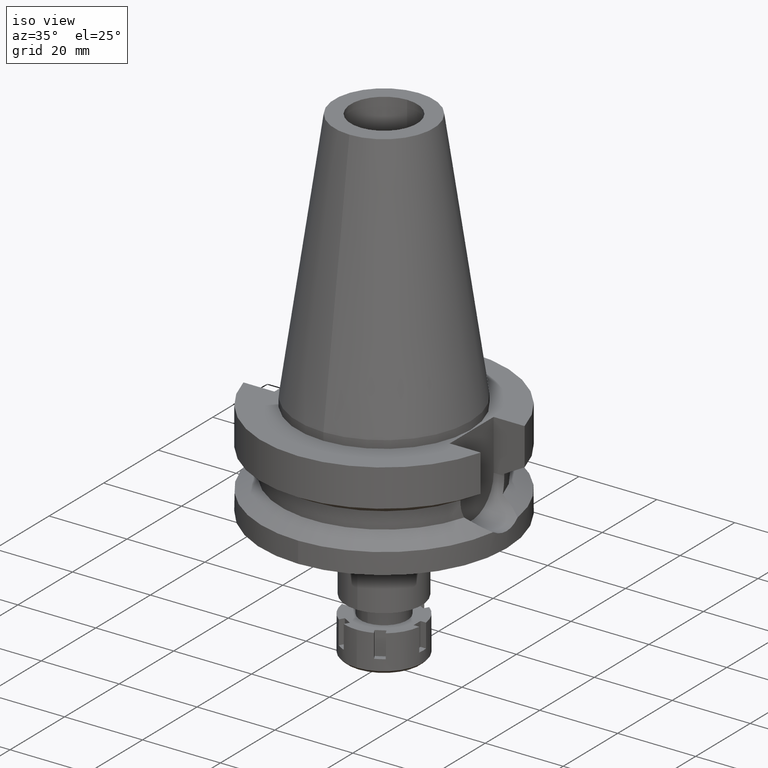
[diagram: clean part render]
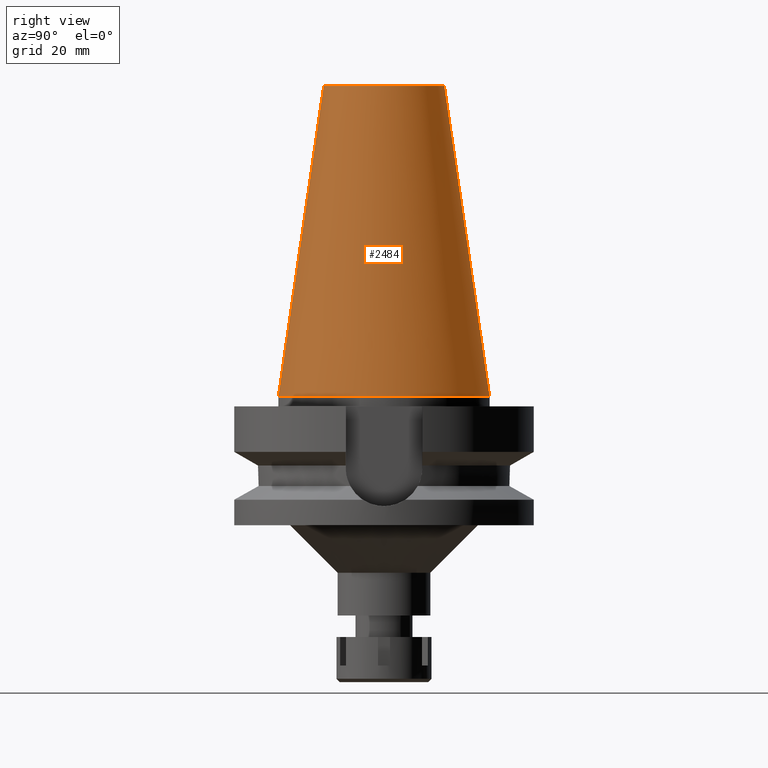
[diagram: tour spotlight — one face highlighted and labeled with its STEP entity id]
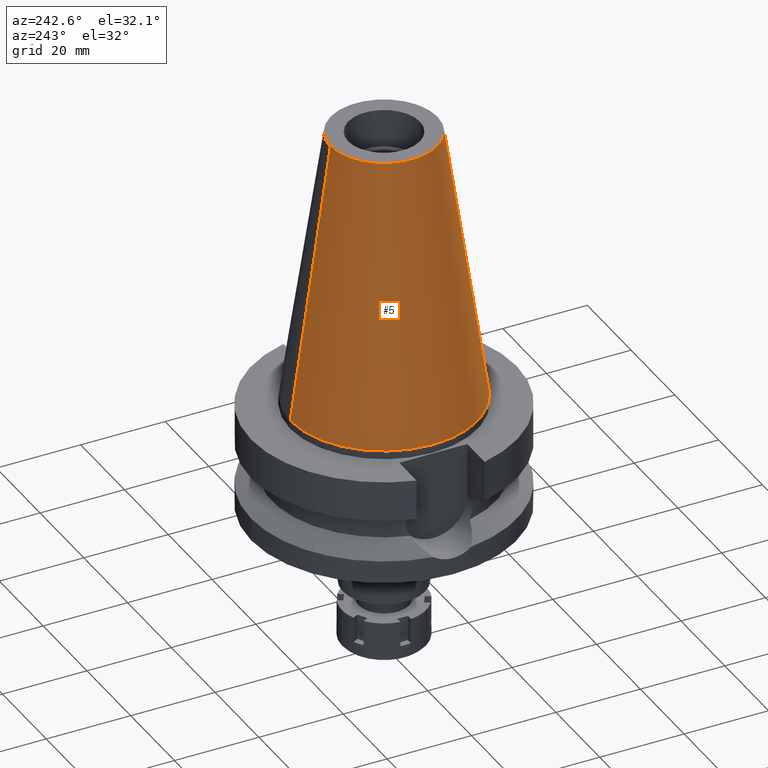
[diagram: tour spotlight — one face highlighted and labeled with its STEP entity id]
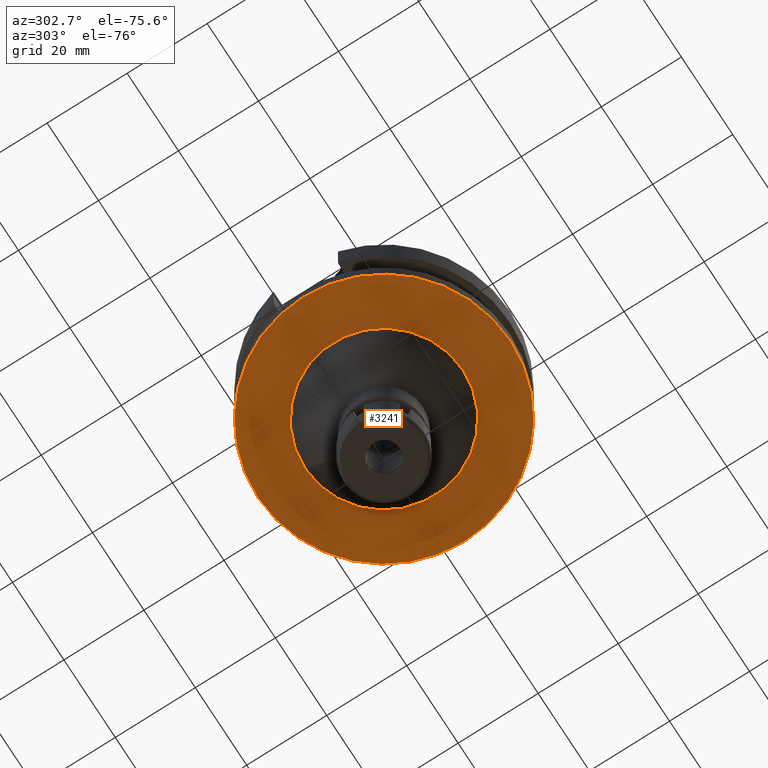
[diagram: tour spotlight — one face highlighted and labeled with its STEP entity id]
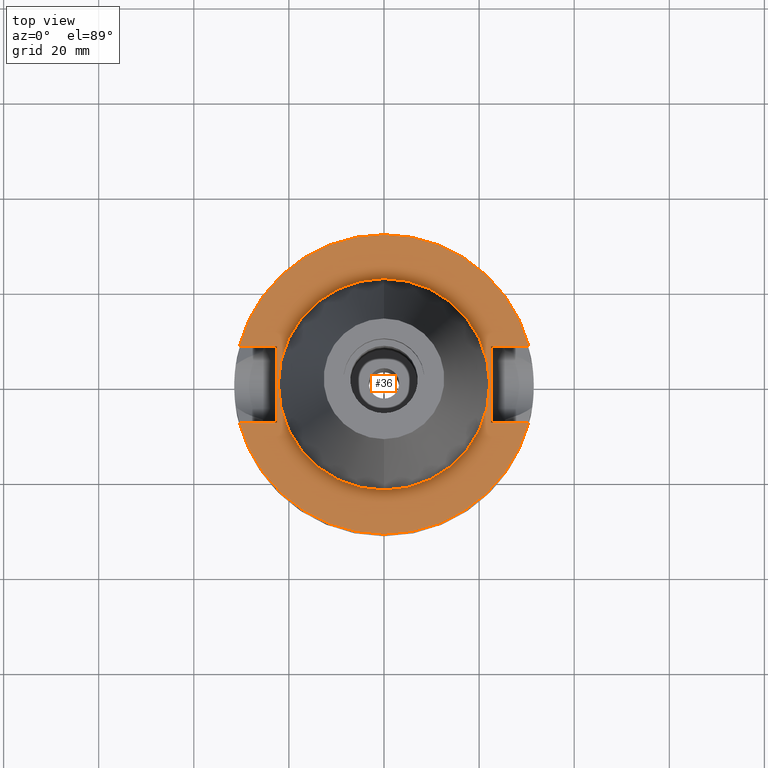
[diagram: tour spotlight — one face highlighted and labeled with its STEP entity id]
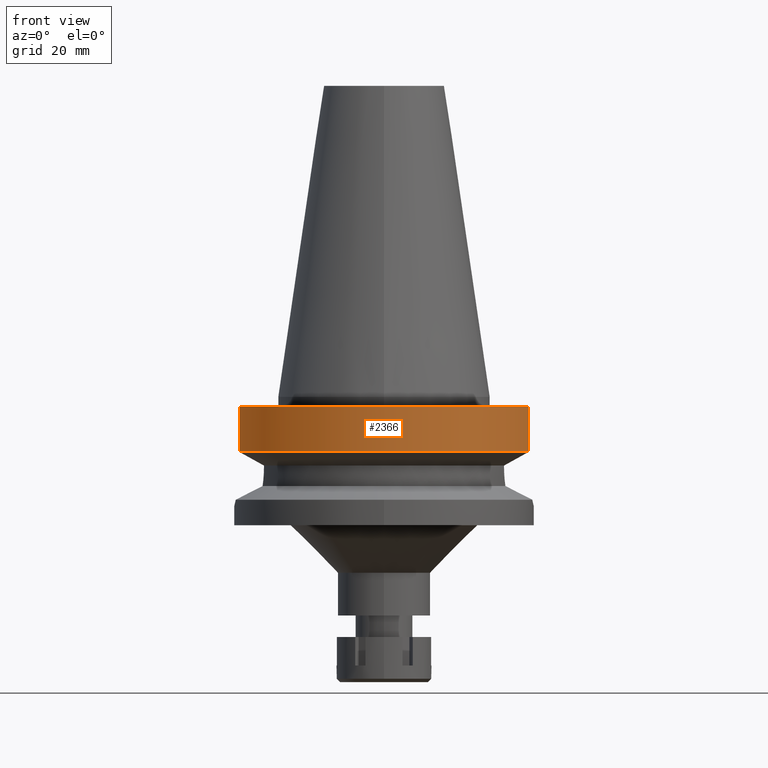
[diagram: tour spotlight — one face highlighted and labeled with its STEP entity id]
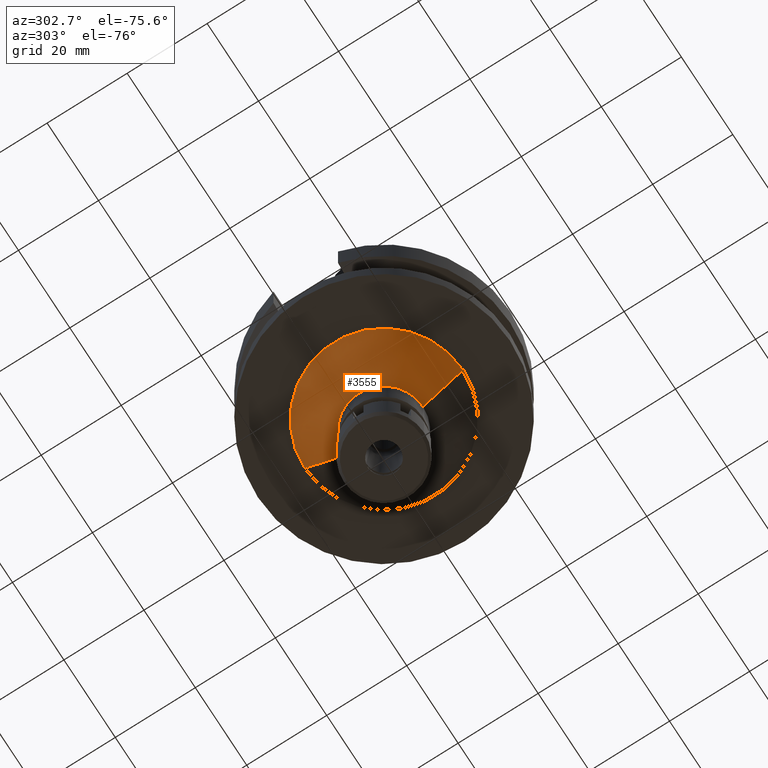
[diagram: tour spotlight — one face highlighted and labeled with its STEP entity id]
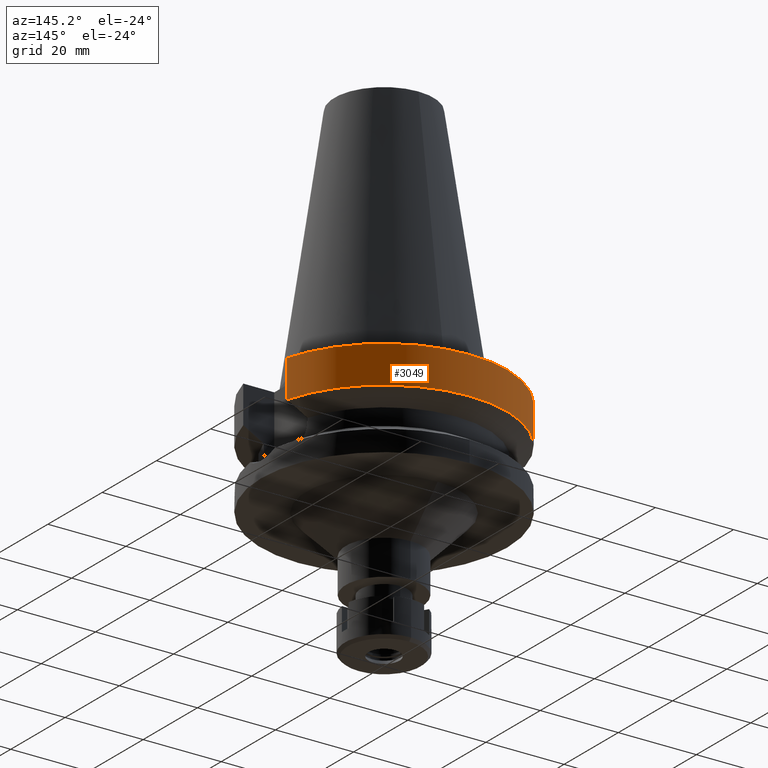
[diagram: tour spotlight — one face highlighted and labeled with its STEP entity id]
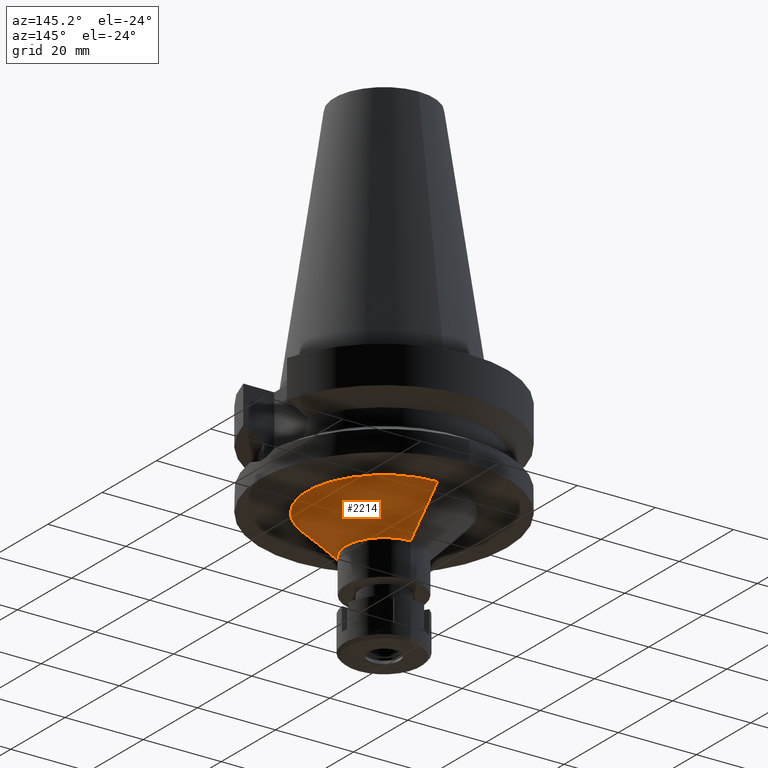
[diagram: tour spotlight — one face highlighted and labeled with its STEP entity id]
A machine part: a face-by-face anatomy tour. The part has 90 B-rep faces; the first image is the clean iso view, then the 8 largest visible faces are spotlighted one at a time (largest first), each with its STEP entity span.

Face 1 — right view, entity #2484. In plain terms, the highlighted conical surface has half-angle 8.297 deg.
Definition (entity closure, byte-faithful):
#177 = CARTESIAN_POINT ( 'NONE',  ( 0.0000000000000000000, 1.625106302469000024E-14, 2.842170943039999687E-14 ) ) ;
#335 = LINE ( 'NONE', #1446, #3339 ) ;
#461 = VERTEX_POINT ( 'NONE', #3129 ) ;
#536 = DIRECTION ( 'NONE',  ( 0.0000000000000000000, 0.0000000000000000000, -1.000000000000000000 ) ) ;
#649 = CARTESIAN_POINT ( 'NONE',  ( 0.0000000000000000000, 12.68766899429999917, 65.40000000000000568 ) ) ;
#653 = DIRECTION ( 'NONE',  ( 0.0000000000000000000, 0.0000000000000000000, -1.000000000000000000 ) ) ;
#698 = CIRCLE ( 'NONE', #2717, 22.22500000000000142 ) ;
#705 = EDGE_LOOP ( 'NONE', ( #3451, #1070, #3132, #872 ) ) ;
#872 = ORIENTED_EDGE ( 'NONE', *, *, #3121, .F. ) ;
#941 = AXIS2_PLACEMENT_3D ( 'NONE', #2431, #1617, #1341 ) ;
#1070 = ORIENTED_EDGE ( 'NONE', *, *, #1762, .T. ) ;
#1124 = VERTEX_POINT ( 'NONE', #1647 ) ;
#1208 = EDGE_CURVE ( 'NONE', #461, #3434, #698, .T. ) ;
#1289 = VERTEX_POINT ( 'NONE', #3405 ) ;
#1341 = DIRECTION ( 'NONE',  ( 0.0000000000000000000, -1.000000000000000000, 0.0000000000000000000 ) ) ;
#1446 = CARTESIAN_POINT ( 'NONE',  ( 0.0000000000000000000, -12.68766899429999917, 65.40000000000000568 ) ) ;
#1499 = VECTOR ( 'NONE', #1817, 1000.000000000000114 ) ;
#1595 = FACE_OUTER_BOUND ( 'NONE', #705, .T. ) ;
#1617 = DIRECTION ( 'NONE',  ( 0.0000000000000000000, 0.0000000000000000000, -1.000000000000000000 ) ) ;
#1647 = CARTESIAN_POINT ( 'NONE',  ( 0.0000000000000000000, 12.68766899429999917, 65.40000000000000568 ) ) ;
#1762 = EDGE_CURVE ( 'NONE', #1289, #3434, #335, .T. ) ;
#1817 = DIRECTION ( 'NONE',  ( 0.0000000000000000000, 0.1443043893539925626, -0.9895333461855498891 ) ) ;
#2207 = CARTESIAN_POINT ( 'NONE',  ( 0.0000000000000000000, -22.22500000000000142, 2.842170943039999687E-14 ) ) ;
#2376 = DIRECTION ( 'NONE',  ( 0.0000000000000000000, 1.000000000000000000, 0.0000000000000000000 ) ) ;
#2387 = EDGE_CURVE ( 'NONE', #1124, #1289, #3355, .T. ) ;
#2431 = CARTESIAN_POINT ( 'NONE',  ( 0.0000000000000000000, 1.625106302469000024E-14, 32.70000000000000284 ) ) ;
#2484 = ADVANCED_FACE ( 'NONE', ( #1595 ), #2505, .T. ) ;
#2505 = CONICAL_SURFACE ( 'NONE', #941, 17.45633449714999941, 0.1448099680379422438 ) ;
#2554 = AXIS2_PLACEMENT_3D ( 'NONE', #2722, #536, #2376 ) ;
#2567 = DIRECTION ( 'NONE',  ( 0.0000000000000000000, 1.000000000000000000, 0.0000000000000000000 ) ) ;
#2717 = AXIS2_PLACEMENT_3D ( 'NONE', #177, #653, #2567 ) ;
#2722 = CARTESIAN_POINT ( 'NONE',  ( 0.0000000000000000000, 1.625106302469000024E-14, 65.40000000000000568 ) ) ;
#3107 = DIRECTION ( 'NONE',  ( 0.0000000000000000000, -0.1443043893539925626, -0.9895333461855498891 ) ) ;
#3111 = LINE ( 'NONE', #649, #1499 ) ;
#3121 = EDGE_CURVE ( 'NONE', #1124, #461, #3111, .T. ) ;
#3129 = CARTESIAN_POINT ( 'NONE',  ( 0.0000000000000000000, 22.22500000000000142, 2.842170943039999687E-14 ) ) ;
#3132 = ORIENTED_EDGE ( 'NONE', *, *, #1208, .F. ) ;
#3339 = VECTOR ( 'NONE', #3107, 1000.000000000000114 ) ;
#3355 = CIRCLE ( 'NONE', #2554, 12.68766899429999917 ) ;
#3405 = CARTESIAN_POINT ( 'NONE',  ( 0.0000000000000000000, -12.68766899429999917, 65.40000000000000568 ) ) ;
#3434 = VERTEX_POINT ( 'NONE', #2207 ) ;
#3451 = ORIENTED_EDGE ( 'NONE', *, *, #2387, .T. ) ;

Face 2 — auxiliary view, entity #5. In plain terms, the highlighted conical surface has half-angle 8.297 deg.
Definition (entity closure, byte-faithful):
#5 = ADVANCED_FACE ( 'NONE', ( #1168 ), #1485, .T. ) ;
#54 = AXIS2_PLACEMENT_3D ( 'NONE', #2635, #2850, #2299 ) ;
#335 = LINE ( 'NONE', #1446, #3339 ) ;
#387 = EDGE_LOOP ( 'NONE', ( #3025, #1884, #2855, #2729 ) ) ;
#461 = VERTEX_POINT ( 'NONE', #3129 ) ;
#649 = CARTESIAN_POINT ( 'NONE',  ( 0.0000000000000000000, 12.68766899429999917, 65.40000000000000568 ) ) ;
#655 = CIRCLE ( 'NONE', #2096, 12.68766899429999917 ) ;
#776 = DIRECTION ( 'NONE',  ( 0.0000000000000000000, -1.000000000000000000, 0.0000000000000000000 ) ) ;
#889 = DIRECTION ( 'NONE',  ( 0.0000000000000000000, 0.0000000000000000000, -1.000000000000000000 ) ) ;
#1124 = VERTEX_POINT ( 'NONE', #1647 ) ;
#1148 = DIRECTION ( 'NONE',  ( 0.0000000000000000000, -1.000000000000000000, 0.0000000000000000000 ) ) ;
#1168 = FACE_OUTER_BOUND ( 'NONE', #387, .T. ) ;
#1217 = EDGE_CURVE ( 'NONE', #3434, #461, #1620, .T. ) ;
#1289 = VERTEX_POINT ( 'NONE', #3405 ) ;
#1446 = CARTESIAN_POINT ( 'NONE',  ( 0.0000000000000000000, -12.68766899429999917, 65.40000000000000568 ) ) ;
#1485 = CONICAL_SURFACE ( 'NONE', #3504, 17.45633449714999941, 0.1448099680379422438 ) ;
#1499 = VECTOR ( 'NONE', #1817, 1000.000000000000114 ) ;
#1620 = CIRCLE ( 'NONE', #54, 22.22500000000000142 ) ;
#1647 = CARTESIAN_POINT ( 'NONE',  ( 0.0000000000000000000, 12.68766899429999917, 65.40000000000000568 ) ) ;
#1762 = EDGE_CURVE ( 'NONE', #1289, #3434, #335, .T. ) ;
#1817 = DIRECTION ( 'NONE',  ( 0.0000000000000000000, 0.1443043893539925626, -0.9895333461855498891 ) ) ;
#1884 = ORIENTED_EDGE ( 'NONE', *, *, #1762, .F. ) ;
#2096 = AXIS2_PLACEMENT_3D ( 'NONE', #2141, #2392, #776 ) ;
#2141 = CARTESIAN_POINT ( 'NONE',  ( 0.0000000000000000000, 1.625106302469000024E-14, 65.40000000000000568 ) ) ;
#2207 = CARTESIAN_POINT ( 'NONE',  ( 0.0000000000000000000, -22.22500000000000142, 2.842170943039999687E-14 ) ) ;
#2299 = DIRECTION ( 'NONE',  ( 0.0000000000000000000, -1.000000000000000000, 0.0000000000000000000 ) ) ;
#2392 = DIRECTION ( 'NONE',  ( 0.0000000000000000000, 0.0000000000000000000, -1.000000000000000000 ) ) ;
#2460 = EDGE_CURVE ( 'NONE', #1289, #1124, #655, .T. ) ;
#2635 = CARTESIAN_POINT ( 'NONE',  ( 0.0000000000000000000, 1.625106302469000024E-14, 2.842170943039999687E-14 ) ) ;
#2729 = ORIENTED_EDGE ( 'NONE', *, *, #3121, .T. ) ;
#2850 = DIRECTION ( 'NONE',  ( 0.0000000000000000000, 0.0000000000000000000, -1.000000000000000000 ) ) ;
#2855 = ORIENTED_EDGE ( 'NONE', *, *, #2460, .T. ) ;
#3025 = ORIENTED_EDGE ( 'NONE', *, *, #1217, .F. ) ;
#3097 = CARTESIAN_POINT ( 'NONE',  ( 0.0000000000000000000, 1.625106302469000024E-14, 32.70000000000000284 ) ) ;
#3107 = DIRECTION ( 'NONE',  ( 0.0000000000000000000, -0.1443043893539925626, -0.9895333461855498891 ) ) ;
#3111 = LINE ( 'NONE', #649, #1499 ) ;
#3121 = EDGE_CURVE ( 'NONE', #1124, #461, #3111, .T. ) ;
#3129 = CARTESIAN_POINT ( 'NONE',  ( 0.0000000000000000000, 22.22500000000000142, 2.842170943039999687E-14 ) ) ;
#3339 = VECTOR ( 'NONE', #3107, 1000.000000000000114 ) ;
#3405 = CARTESIAN_POINT ( 'NONE',  ( 0.0000000000000000000, -12.68766899429999917, 65.40000000000000568 ) ) ;
#3434 = VERTEX_POINT ( 'NONE', #2207 ) ;
#3504 = AXIS2_PLACEMENT_3D ( 'NONE', #3097, #889, #1148 ) ;

Face 3 — auxiliary view, entity #3241. In plain terms, the highlighted planar face has unit normal (0, 0, -1).
Definition (entity closure, byte-faithful):
#311 = AXIS2_PLACEMENT_3D ( 'NONE', #3413, #2280, #927 ) ;
#433 = CARTESIAN_POINT ( 'NONE',  ( 0.0000000000000000000, 2.099289543097999720E-14, -27.00000000000000000 ) ) ;
#445 = ORIENTED_EDGE ( 'NONE', *, *, #2226, .F. ) ;
#470 = CIRCLE ( 'NONE', #2203, 31.50000000000000000 ) ;
#533 = EDGE_CURVE ( 'NONE', #2171, #801, #2614, .T. ) ;
#723 = DIRECTION ( 'NONE',  ( 0.0000000000000000000, 0.0000000000000000000, -1.000000000000000000 ) ) ;
#744 = DIRECTION ( 'NONE',  ( 0.0000000000000000000, 0.0000000000000000000, 1.000000000000000000 ) ) ;
#801 = VERTEX_POINT ( 'NONE', #1192 ) ;
#918 = DIRECTION ( 'NONE',  ( 0.0000000000000000000, 1.000000000000000000, 0.0000000000000000000 ) ) ;
#927 = DIRECTION ( 'NONE',  ( 0.0000000000000000000, -1.000000000000000000, 0.0000000000000000000 ) ) ;
#987 = DIRECTION ( 'NONE',  ( 0.0000000000000000000, -1.000000000000000000, 0.0000000000000000000 ) ) ;
#1159 = ORIENTED_EDGE ( 'NONE', *, *, #3500, .F. ) ;
#1192 = CARTESIAN_POINT ( 'NONE',  ( 0.0000000000000000000, -19.75000000000000000, -27.00000000000000000 ) ) ;
#1216 = CARTESIAN_POINT ( 'NONE',  ( 0.0000000000000000000, 31.50000000000000000, -27.00000000000000000 ) ) ;
#1303 = CIRCLE ( 'NONE', #3489, 31.50000000000000000 ) ;
#1324 = CARTESIAN_POINT ( 'NONE',  ( 0.0000000000000000000, 0.0000000000000000000, -27.00000000000000000 ) ) ;
#1431 = VERTEX_POINT ( 'NONE', #3425 ) ;
#1493 = FACE_BOUND ( 'NONE', #2619, .T. ) ;
#1513 = DIRECTION ( 'NONE',  ( 0.0000000000000000000, 1.000000000000000000, 0.0000000000000000000 ) ) ;
#1558 = AXIS2_PLACEMENT_3D ( 'NONE', #2581, #723, #987 ) ;
#1812 = CARTESIAN_POINT ( 'NONE',  ( 0.0000000000000000000, 19.75000000000000000, -27.00000000000000000 ) ) ;
#2043 = ORIENTED_EDGE ( 'NONE', *, *, #3189, .F. ) ;
#2171 = VERTEX_POINT ( 'NONE', #1812 ) ;
#2188 = VERTEX_POINT ( 'NONE', #1216 ) ;
#2203 = AXIS2_PLACEMENT_3D ( 'NONE', #433, #744, #1513 ) ;
#2226 = EDGE_CURVE ( 'NONE', #801, #2171, #3122, .T. ) ;
#2280 = DIRECTION ( 'NONE',  ( 0.0000000000000000000, 0.0000000000000000000, -1.000000000000000000 ) ) ;
#2338 = DIRECTION ( 'NONE',  ( 0.0000000000000000000, -1.000000000000000000, 0.0000000000000000000 ) ) ;
#2515 = ORIENTED_EDGE ( 'NONE', *, *, #533, .F. ) ;
#2581 = CARTESIAN_POINT ( 'NONE',  ( 0.0000000000000000000, 0.0000000000000000000, -27.00000000000000000 ) ) ;
#2601 = PLANE ( 'NONE',  #1558 ) ;
#2614 = CIRCLE ( 'NONE', #2785, 19.75000000000000000 ) ;
#2619 = EDGE_LOOP ( 'NONE', ( #2515, #445 ) ) ;
#2785 = AXIS2_PLACEMENT_3D ( 'NONE', #1324, #3381, #918 ) ;
#3122 = CIRCLE ( 'NONE', #311, 19.75000000000000000 ) ;
#3136 = DIRECTION ( 'NONE',  ( 0.0000000000000000000, 0.0000000000000000000, 1.000000000000000000 ) ) ;
#3189 = EDGE_CURVE ( 'NONE', #2188, #1431, #470, .T. ) ;
#3241 = ADVANCED_FACE ( 'NONE', ( #3457, #1493 ), #2601, .T. ) ;
#3381 = DIRECTION ( 'NONE',  ( 0.0000000000000000000, 0.0000000000000000000, -1.000000000000000000 ) ) ;
#3413 = CARTESIAN_POINT ( 'NONE',  ( 0.0000000000000000000, 0.0000000000000000000, -27.00000000000000000 ) ) ;
#3425 = CARTESIAN_POINT ( 'NONE',  ( 0.0000000000000000000, -31.50000000000000000, -27.00000000000000000 ) ) ;
#3430 = CARTESIAN_POINT ( 'NONE',  ( 0.0000000000000000000, 2.099289543097999720E-14, -27.00000000000000000 ) ) ;
#3457 = FACE_OUTER_BOUND ( 'NONE', #3461, .T. ) ;
#3461 = EDGE_LOOP ( 'NONE', ( #2043, #1159 ) ) ;
#3489 = AXIS2_PLACEMENT_3D ( 'NONE', #3430, #3136, #2338 ) ;
#3500 = EDGE_CURVE ( 'NONE', #1431, #2188, #1303, .T. ) ;

Face 4 — top view, entity #36. In plain terms, the highlighted planar face has unit normal (0, 0, -1).
Definition (entity closure, byte-faithful):
#36 = ADVANCED_FACE ( 'NONE', ( #107, #3066 ), #921, .F. ) ;
#48 = CARTESIAN_POINT ( 'NONE',  ( 0.0000000000000000000, 2.099289543097999720E-14, -2.000000000000000000 ) ) ;
#50 = ORIENTED_EDGE ( 'NONE', *, *, #349, .F. ) ;
#75 = EDGE_CURVE ( 'NONE', #2032, #78, #2419, .T. ) ;
#78 = VERTEX_POINT ( 'NONE', #2482 ) ;
#92 = EDGE_LOOP ( 'NONE', ( #643, #122, #50, #1174, #2604, #2137, #2745, #933 ) ) ;
#107 = FACE_OUTER_BOUND ( 'NONE', #92, .T. ) ;
#122 = ORIENTED_EDGE ( 'NONE', *, *, #2010, .F. ) ;
#169 = CARTESIAN_POINT ( 'NONE',  ( -30.45402272279000044, -8.050000000000000711, -2.000000000000000000 ) ) ;
#191 = AXIS2_PLACEMENT_3D ( 'NONE', #3502, #2934, #1038 ) ;
#218 = DIRECTION ( 'NONE',  ( 0.0000000000000000000, 1.000000000000000000, 0.0000000000000000000 ) ) ;
#245 = EDGE_CURVE ( 'NONE', #78, #2032, #3522, .T. ) ;
#278 = VECTOR ( 'NONE', #1618, 1000.000000000000000 ) ;
#292 = CARTESIAN_POINT ( 'NONE',  ( 22.50000000000000000, -8.050000000000000711, -2.000000000000000000 ) ) ;
#349 = EDGE_CURVE ( 'NONE', #3308, #2831, #556, .T. ) ;
#432 = LINE ( 'NONE', #1577, #1509 ) ;
#485 = CARTESIAN_POINT ( 'NONE',  ( -22.50000000000000000, -8.050000000000000711, -2.000000000000000000 ) ) ;
#513 = EDGE_CURVE ( 'NONE', #1074, #3308, #432, .T. ) ;
#537 = LINE ( 'NONE', #3563, #278 ) ;
#556 = LINE ( 'NONE', #292, #3236 ) ;
#570 = AXIS2_PLACEMENT_3D ( 'NONE', #1959, #2803, #3356 ) ;
#575 = EDGE_CURVE ( 'NONE', #3123, #2919, #793, .T. ) ;
#602 = EDGE_CURVE ( 'NONE', #1279, #2345, #537, .T. ) ;
#633 = DIRECTION ( 'NONE',  ( 0.0000000000000000000, 0.0000000000000000000, -1.000000000000000000 ) ) ;
#639 = VECTOR ( 'NONE', #1237, 1000.000000000000000 ) ;
#643 = ORIENTED_EDGE ( 'NONE', *, *, #602, .T. ) ;
#684 = CARTESIAN_POINT ( 'NONE',  ( -22.50000000000000000, 8.050000000000000711, -2.000000000000000000 ) ) ;
#759 = LINE ( 'NONE', #485, #1719 ) ;
#787 = CARTESIAN_POINT ( 'NONE',  ( 0.0000000000000000000, 2.099289543097999720E-14, -2.000000000000000000 ) ) ;
#793 = LINE ( 'NONE', #1359, #1477 ) ;
#861 = AXIS2_PLACEMENT_3D ( 'NONE', #787, #2978, #218 ) ;
#921 = PLANE ( 'NONE',  #1953 ) ;
#933 = ORIENTED_EDGE ( 'NONE', *, *, #1919, .F. ) ;
#966 = CARTESIAN_POINT ( 'NONE',  ( -30.45402272279000044, 8.050000000000000711, -2.000000000000000000 ) ) ;
#1038 = DIRECTION ( 'NONE',  ( 0.0000000000000000000, 1.000000000000000000, 0.0000000000000000000 ) ) ;
#1074 = VERTEX_POINT ( 'NONE', #1954 ) ;
#1174 = ORIENTED_EDGE ( 'NONE', *, *, #513, .F. ) ;
#1237 = DIRECTION ( 'NONE',  ( 1.000000000000000000, -3.506251283225999947E-14, 0.0000000000000000000 ) ) ;
#1276 = CARTESIAN_POINT ( 'NONE',  ( 30.45402272279000044, 8.050000000000000711, -2.000000000000000000 ) ) ;
#1279 = VERTEX_POINT ( 'NONE', #2041 ) ;
#1311 = ORIENTED_EDGE ( 'NONE', *, *, #75, .F. ) ;
#1359 = CARTESIAN_POINT ( 'NONE',  ( -22.50000000000000000, 8.050000000000000711, -2.000000000000000000 ) ) ;
#1477 = VECTOR ( 'NONE', #1888, 1000.000000000000000 ) ;
#1508 = CARTESIAN_POINT ( 'NONE',  ( 22.50000000000000000, 8.050000000000000711, -2.000000000000000000 ) ) ;
#1509 = VECTOR ( 'NONE', #2700, 1000.000000000000000 ) ;
#1552 = CARTESIAN_POINT ( 'NONE',  ( 30.45402272279000044, -8.050000000000000711, -2.000000000000000000 ) ) ;
#1577 = CARTESIAN_POINT ( 'NONE',  ( 22.50000000000000000, 8.050000000000000711, -2.000000000000000000 ) ) ;
#1618 = DIRECTION ( 'NONE',  ( -1.000000000000000000, 3.550916904668000126E-14, 0.0000000000000000000 ) ) ;
#1711 = DIRECTION ( 'NONE',  ( 0.0000000000000000000, -1.000000000000000000, 0.0000000000000000000 ) ) ;
#1719 = VECTOR ( 'NONE', #2415, 1000.000000000000000 ) ;
#1746 = CIRCLE ( 'NONE', #191, 31.50000000000000000 ) ;
#1821 = ORIENTED_EDGE ( 'NONE', *, *, #245, .F. ) ;
#1888 = DIRECTION ( 'NONE',  ( -1.000000000000000000, -3.550916904668000126E-14, 0.0000000000000000000 ) ) ;
#1919 = EDGE_CURVE ( 'NONE', #1279, #3123, #759, .T. ) ;
#1953 = AXIS2_PLACEMENT_3D ( 'NONE', #2024, #633, #1711 ) ;
#1954 = CARTESIAN_POINT ( 'NONE',  ( 22.50000000000000000, 8.050000000000000711, -2.000000000000000000 ) ) ;
#1959 = CARTESIAN_POINT ( 'NONE',  ( 0.0000000000000000000, 2.099289543097999720E-14, -2.000000000000000000 ) ) ;
#1974 = AXIS2_PLACEMENT_3D ( 'NONE', #48, #3361, #3028 ) ;
#2010 = EDGE_CURVE ( 'NONE', #2831, #2345, #3216, .T. ) ;
#2024 = CARTESIAN_POINT ( 'NONE',  ( 0.0000000000000000000, 1.200153863163999924E-14, -2.000000000000000000 ) ) ;
#2032 = VERTEX_POINT ( 'NONE', #3085 ) ;
#2041 = CARTESIAN_POINT ( 'NONE',  ( -22.50000000000000000, -8.050000000000000711, -2.000000000000000000 ) ) ;
#2137 = ORIENTED_EDGE ( 'NONE', *, *, #2456, .F. ) ;
#2345 = VERTEX_POINT ( 'NONE', #169 ) ;
#2415 = DIRECTION ( 'NONE',  ( 0.0000000000000000000, 1.000000000000000000, 0.0000000000000000000 ) ) ;
#2419 = CIRCLE ( 'NONE', #861, 22.22500000000000142 ) ;
#2456 = EDGE_CURVE ( 'NONE', #2919, #3167, #1746, .T. ) ;
#2482 = CARTESIAN_POINT ( 'NONE',  ( 0.0000000000000000000, -22.22500000000000142, -2.000000000000000000 ) ) ;
#2497 = DIRECTION ( 'NONE',  ( 1.000000000000000000, 3.573249715389999860E-14, 0.0000000000000000000 ) ) ;
#2573 = LINE ( 'NONE', #1508, #639 ) ;
#2604 = ORIENTED_EDGE ( 'NONE', *, *, #2912, .T. ) ;
#2700 = DIRECTION ( 'NONE',  ( 0.0000000000000000000, -1.000000000000000000, 0.0000000000000000000 ) ) ;
#2745 = ORIENTED_EDGE ( 'NONE', *, *, #575, .F. ) ;
#2803 = DIRECTION ( 'NONE',  ( 0.0000000000000000000, 0.0000000000000000000, -1.000000000000000000 ) ) ;
#2831 = VERTEX_POINT ( 'NONE', #1552 ) ;
#2905 = CARTESIAN_POINT ( 'NONE',  ( 22.50000000000000000, -8.050000000000000711, -2.000000000000000000 ) ) ;
#2912 = EDGE_CURVE ( 'NONE', #1074, #3167, #2573, .T. ) ;
#2919 = VERTEX_POINT ( 'NONE', #966 ) ;
#2934 = DIRECTION ( 'NONE',  ( 0.0000000000000000000, 0.0000000000000000000, -1.000000000000000000 ) ) ;
#2978 = DIRECTION ( 'NONE',  ( 0.0000000000000000000, 0.0000000000000000000, 1.000000000000000000 ) ) ;
#3028 = DIRECTION ( 'NONE',  ( 0.0000000000000000000, -1.000000000000000000, 0.0000000000000000000 ) ) ;
#3066 = FACE_BOUND ( 'NONE', #3200, .T. ) ;
#3085 = CARTESIAN_POINT ( 'NONE',  ( 0.0000000000000000000, 22.22500000000000142, -2.000000000000000000 ) ) ;
#3123 = VERTEX_POINT ( 'NONE', #684 ) ;
#3167 = VERTEX_POINT ( 'NONE', #1276 ) ;
#3200 = EDGE_LOOP ( 'NONE', ( #1311, #1821 ) ) ;
#3216 = CIRCLE ( 'NONE', #570, 31.50000000000000000 ) ;
#3236 = VECTOR ( 'NONE', #2497, 1000.000000000000000 ) ;
#3308 = VERTEX_POINT ( 'NONE', #2905 ) ;
#3356 = DIRECTION ( 'NONE',  ( 0.0000000000000000000, -1.000000000000000000, 0.0000000000000000000 ) ) ;
#3361 = DIRECTION ( 'NONE',  ( 0.0000000000000000000, 0.0000000000000000000, 1.000000000000000000 ) ) ;
#3502 = CARTESIAN_POINT ( 'NONE',  ( 0.0000000000000000000, 2.099289543097999720E-14, -2.000000000000000000 ) ) ;
#3522 = CIRCLE ( 'NONE', #1974, 22.22500000000000142 ) ;
#3563 = CARTESIAN_POINT ( 'NONE',  ( -22.50000000000000000, -8.050000000000000711, -2.000000000000000000 ) ) ;

Face 5 — front view, entity #2366. In plain terms, the highlighted cylindrical surface (partial cylindrical patch) has radius 31.5 mm, axis along (0, 0, -1).
Definition (entity closure, byte-faithful):
#165 = VERTEX_POINT ( 'NONE', #2193 ) ;
#169 = CARTESIAN_POINT ( 'NONE',  ( -30.45402272279000044, -8.050000000000000711, -2.000000000000000000 ) ) ;
#172 = AXIS2_PLACEMENT_3D ( 'NONE', #3050, #3094, #3064 ) ;
#207 = DIRECTION ( 'NONE',  ( 0.0000000000000000000, -1.000000000000000000, 0.0000000000000000000 ) ) ;
#369 = CARTESIAN_POINT ( 'NONE',  ( -30.45402291833999797, -8.049999260217997943, -11.56551231572000127 ) ) ;
#429 = LINE ( 'NONE', #2071, #1103 ) ;
#570 = AXIS2_PLACEMENT_3D ( 'NONE', #1959, #2803, #3356 ) ;
#792 = DIRECTION ( 'NONE',  ( 0.0000000000000000000, 0.0000000000000000000, -1.000000000000000000 ) ) ;
#810 = FACE_OUTER_BOUND ( 'NONE', #982, .T. ) ;
#982 = EDGE_LOOP ( 'NONE', ( #2825, #3257, #1387, #2369 ) ) ;
#1043 = CIRCLE ( 'NONE', #172, 31.50000000000000000 ) ;
#1103 = VECTOR ( 'NONE', #1200, 1000.000000000000114 ) ;
#1200 = DIRECTION ( 'NONE',  ( 2.044301243487988748E-08, -7.733839338450955782E-08, 0.9999999999999967804 ) ) ;
#1387 = ORIENTED_EDGE ( 'NONE', *, *, #3280, .F. ) ;
#1552 = CARTESIAN_POINT ( 'NONE',  ( 30.45402272279000044, -8.050000000000000711, -2.000000000000000000 ) ) ;
#1575 = CYLINDRICAL_SURFACE ( 'NONE', #2838, 31.50000000000000000 ) ;
#1907 = CARTESIAN_POINT ( 'NONE',  ( 0.0000000000000000000, 2.099289543097999720E-14, 71.42000000000000171 ) ) ;
#1959 = CARTESIAN_POINT ( 'NONE',  ( 0.0000000000000000000, 2.099289543097999720E-14, -2.000000000000000000 ) ) ;
#2010 = EDGE_CURVE ( 'NONE', #2831, #2345, #3216, .T. ) ;
#2071 = CARTESIAN_POINT ( 'NONE',  ( -30.45402291833999797, -8.049999260217997943, -11.56551231572000127 ) ) ;
#2193 = CARTESIAN_POINT ( 'NONE',  ( 30.45402272279000044, -8.049999999999000622, -11.56550565266999975 ) ) ;
#2330 = CARTESIAN_POINT ( 'NONE',  ( 30.45402272279000044, -8.050000000000000711, -2.000000000000000000 ) ) ;
#2345 = VERTEX_POINT ( 'NONE', #169 ) ;
#2366 = ADVANCED_FACE ( 'NONE', ( #810 ), #1575, .T. ) ;
#2369 = ORIENTED_EDGE ( 'NONE', *, *, #2010, .T. ) ;
#2803 = DIRECTION ( 'NONE',  ( 0.0000000000000000000, 0.0000000000000000000, -1.000000000000000000 ) ) ;
#2825 = ORIENTED_EDGE ( 'NONE', *, *, #2936, .F. ) ;
#2831 = VERTEX_POINT ( 'NONE', #1552 ) ;
#2838 = AXIS2_PLACEMENT_3D ( 'NONE', #1907, #792, #207 ) ;
#2889 = VECTOR ( 'NONE', #3197, 1000.000000000000114 ) ;
#2911 = VERTEX_POINT ( 'NONE', #369 ) ;
#2936 = EDGE_CURVE ( 'NONE', #2911, #2345, #429, .T. ) ;
#3017 = EDGE_CURVE ( 'NONE', #2911, #165, #1043, .T. ) ;
#3050 = CARTESIAN_POINT ( 'NONE',  ( 0.0000000000000000000, 1.065333950388000029E-14, -11.56550565266999975 ) ) ;
#3064 = DIRECTION ( 'NONE',  ( 0.0000000000000000000, -1.000000000000000000, 0.0000000000000000000 ) ) ;
#3094 = DIRECTION ( 'NONE',  ( 0.0000000000000000000, 0.0000000000000000000, 1.000000000000000000 ) ) ;
#3197 = DIRECTION ( 'NONE',  ( -1.153798161281997856E-07, -4.364937567455989312E-07, -0.9999999999998979705 ) ) ;
#3216 = CIRCLE ( 'NONE', #570, 31.50000000000000000 ) ;
#3257 = ORIENTED_EDGE ( 'NONE', *, *, #3017, .T. ) ;
#3280 = EDGE_CURVE ( 'NONE', #2831, #165, #3424, .T. ) ;
#3356 = DIRECTION ( 'NONE',  ( 0.0000000000000000000, -1.000000000000000000, 0.0000000000000000000 ) ) ;
#3424 = LINE ( 'NONE', #2330, #2889 ) ;

Face 6 — auxiliary view, entity #3555. In plain terms, the highlighted conical surface has half-angle 45 deg.
Definition (entity closure, byte-faithful):
#40 = EDGE_LOOP ( 'NONE', ( #527, #848, #2035, #864 ) ) ;
#91 = CARTESIAN_POINT ( 'NONE',  ( 0.0000000000000000000, -19.75000000000000000, -27.00000000000000000 ) ) ;
#311 = AXIS2_PLACEMENT_3D ( 'NONE', #3413, #2280, #927 ) ;
#329 = AXIS2_PLACEMENT_3D ( 'NONE', #1399, #3072, #2759 ) ;
#527 = ORIENTED_EDGE ( 'NONE', *, *, #950, .F. ) ;
#614 = CARTESIAN_POINT ( 'NONE',  ( 0.0000000000000000000, -9.750000000000000000, -37.00000000000000000 ) ) ;
#738 = CIRCLE ( 'NONE', #2578, 9.750000000000000000 ) ;
#756 = DIRECTION ( 'NONE',  ( 0.0000000000000000000, 0.0000000000000000000, -1.000000000000000000 ) ) ;
#801 = VERTEX_POINT ( 'NONE', #1192 ) ;
#848 = ORIENTED_EDGE ( 'NONE', *, *, #2163, .F. ) ;
#864 = ORIENTED_EDGE ( 'NONE', *, *, #1165, .T. ) ;
#927 = DIRECTION ( 'NONE',  ( 0.0000000000000000000, -1.000000000000000000, 0.0000000000000000000 ) ) ;
#950 = EDGE_CURVE ( 'NONE', #1337, #2374, #738, .T. ) ;
#1059 = CARTESIAN_POINT ( 'NONE',  ( 0.0000000000000000000, 9.750000000000000000, -37.00000000000000000 ) ) ;
#1093 = CARTESIAN_POINT ( 'NONE',  ( 0.0000000000000000000, 0.0000000000000000000, -37.00000000000000000 ) ) ;
#1165 = EDGE_CURVE ( 'NONE', #2171, #2374, #3068, .T. ) ;
#1192 = CARTESIAN_POINT ( 'NONE',  ( 0.0000000000000000000, -19.75000000000000000, -27.00000000000000000 ) ) ;
#1337 = VERTEX_POINT ( 'NONE', #614 ) ;
#1393 = CARTESIAN_POINT ( 'NONE',  ( 0.0000000000000000000, 19.75000000000000000, -27.00000000000000000 ) ) ;
#1399 = CARTESIAN_POINT ( 'NONE',  ( 0.0000000000000000000, 0.0000000000000000000, -32.00000000000000000 ) ) ;
#1418 = CONICAL_SURFACE ( 'NONE', #329, 14.75000000000000000, 0.7853981633972997312 ) ;
#1812 = CARTESIAN_POINT ( 'NONE',  ( 0.0000000000000000000, 19.75000000000000000, -27.00000000000000000 ) ) ;
#1934 = DIRECTION ( 'NONE',  ( 0.0000000000000000000, -0.7071067811865474617, -0.7071067811865474617 ) ) ;
#2035 = ORIENTED_EDGE ( 'NONE', *, *, #2226, .T. ) ;
#2163 = EDGE_CURVE ( 'NONE', #801, #1337, #2354, .T. ) ;
#2171 = VERTEX_POINT ( 'NONE', #1812 ) ;
#2197 = DIRECTION ( 'NONE',  ( 0.0000000000000000000, -1.000000000000000000, 0.0000000000000000000 ) ) ;
#2226 = EDGE_CURVE ( 'NONE', #801, #2171, #3122, .T. ) ;
#2280 = DIRECTION ( 'NONE',  ( 0.0000000000000000000, 0.0000000000000000000, -1.000000000000000000 ) ) ;
#2354 = LINE ( 'NONE', #91, #2420 ) ;
#2374 = VERTEX_POINT ( 'NONE', #1059 ) ;
#2420 = VECTOR ( 'NONE', #3371, 1000.000000000000114 ) ;
#2428 = VECTOR ( 'NONE', #1934, 1000.000000000000114 ) ;
#2578 = AXIS2_PLACEMENT_3D ( 'NONE', #1093, #756, #2197 ) ;
#2759 = DIRECTION ( 'NONE',  ( 0.0000000000000000000, 1.000000000000000000, 0.0000000000000000000 ) ) ;
#3058 = FACE_OUTER_BOUND ( 'NONE', #40, .T. ) ;
#3068 = LINE ( 'NONE', #1393, #2428 ) ;
#3072 = DIRECTION ( 'NONE',  ( 0.0000000000000000000, 0.0000000000000000000, 1.000000000000000000 ) ) ;
#3122 = CIRCLE ( 'NONE', #311, 19.75000000000000000 ) ;
#3371 = DIRECTION ( 'NONE',  ( 0.0000000000000000000, 0.7071067811865474617, -0.7071067811865474617 ) ) ;
#3413 = CARTESIAN_POINT ( 'NONE',  ( 0.0000000000000000000, 0.0000000000000000000, -27.00000000000000000 ) ) ;
#3555 = ADVANCED_FACE ( 'NONE', ( #3058 ), #1418, .T. ) ;

Face 7 — auxiliary view, entity #3049. In plain terms, the highlighted cylindrical surface (partial cylindrical patch) has radius 31.5 mm, axis along (0, 0, -1).
Definition (entity closure, byte-faithful):
#30 = CARTESIAN_POINT ( 'NONE',  ( 0.0000000000000000000, 2.099289543097999720E-14, 71.42000000000000171 ) ) ;
#49 = CYLINDRICAL_SURFACE ( 'NONE', #2660, 31.50000000000000000 ) ;
#191 = AXIS2_PLACEMENT_3D ( 'NONE', #3502, #2934, #1038 ) ;
#324 = DIRECTION ( 'NONE',  ( 0.0000000000000000000, -1.000000000000000000, 0.0000000000000000000 ) ) ;
#394 = DIRECTION ( 'NONE',  ( 0.0000000000000000000, 1.000000000000000000, 0.0000000000000000000 ) ) ;
#400 = VECTOR ( 'NONE', #2489, 1000.000000000000114 ) ;
#407 = AXIS2_PLACEMENT_3D ( 'NONE', #2382, #2364, #394 ) ;
#568 = CARTESIAN_POINT ( 'NONE',  ( 30.45402291837999798, 8.049999260052999261, -11.56551231720999873 ) ) ;
#658 = ORIENTED_EDGE ( 'NONE', *, *, #2068, .F. ) ;
#673 = DIRECTION ( 'NONE',  ( 1.153115584401998118E-07, 4.362355326964995613E-07, -0.9999999999998980815 ) ) ;
#735 = VECTOR ( 'NONE', #673, 1000.000000000000114 ) ;
#966 = CARTESIAN_POINT ( 'NONE',  ( -30.45402272279000044, 8.050000000000000711, -2.000000000000000000 ) ) ;
#1038 = DIRECTION ( 'NONE',  ( 0.0000000000000000000, 1.000000000000000000, 0.0000000000000000000 ) ) ;
#1232 = LINE ( 'NONE', #3412, #735 ) ;
#1276 = CARTESIAN_POINT ( 'NONE',  ( 30.45402272279000044, 8.050000000000000711, -2.000000000000000000 ) ) ;
#1746 = CIRCLE ( 'NONE', #191, 31.50000000000000000 ) ;
#1973 = DIRECTION ( 'NONE',  ( 0.0000000000000000000, 0.0000000000000000000, -1.000000000000000000 ) ) ;
#1995 = LINE ( 'NONE', #568, #400 ) ;
#2068 = EDGE_CURVE ( 'NONE', #2839, #3167, #1995, .T. ) ;
#2093 = VERTEX_POINT ( 'NONE', #2789 ) ;
#2292 = FACE_OUTER_BOUND ( 'NONE', #3395, .T. ) ;
#2364 = DIRECTION ( 'NONE',  ( 0.0000000000000000000, 0.0000000000000000000, 1.000000000000000000 ) ) ;
#2382 = CARTESIAN_POINT ( 'NONE',  ( 0.0000000000000000000, 1.065333950388000029E-14, -11.56550565266999975 ) ) ;
#2447 = ORIENTED_EDGE ( 'NONE', *, *, #3463, .F. ) ;
#2456 = EDGE_CURVE ( 'NONE', #2919, #3167, #1746, .T. ) ;
#2489 = DIRECTION ( 'NONE',  ( -2.044758632877988429E-08, 7.735570008537947017E-08, 0.9999999999999967804 ) ) ;
#2660 = AXIS2_PLACEMENT_3D ( 'NONE', #30, #1973, #324 ) ;
#2789 = CARTESIAN_POINT ( 'NONE',  ( -30.45402161978000066, 8.050004172796999313, -11.56546806591000021 ) ) ;
#2839 = VERTEX_POINT ( 'NONE', #3202 ) ;
#2919 = VERTEX_POINT ( 'NONE', #966 ) ;
#2934 = DIRECTION ( 'NONE',  ( 0.0000000000000000000, 0.0000000000000000000, -1.000000000000000000 ) ) ;
#3049 = ADVANCED_FACE ( 'NONE', ( #2292 ), #49, .T. ) ;
#3054 = CIRCLE ( 'NONE', #407, 31.50000000000000000 ) ;
#3147 = EDGE_CURVE ( 'NONE', #2839, #2093, #3054, .T. ) ;
#3167 = VERTEX_POINT ( 'NONE', #1276 ) ;
#3173 = ORIENTED_EDGE ( 'NONE', *, *, #2456, .T. ) ;
#3202 = CARTESIAN_POINT ( 'NONE',  ( 30.45402291837999798, 8.049999260052999261, -11.56551231720999873 ) ) ;
#3296 = ORIENTED_EDGE ( 'NONE', *, *, #3147, .T. ) ;
#3395 = EDGE_LOOP ( 'NONE', ( #2447, #3173, #658, #3296 ) ) ;
#3412 = CARTESIAN_POINT ( 'NONE',  ( -30.45402272279000044, 8.050000000000000711, -2.000000000000000000 ) ) ;
#3463 = EDGE_CURVE ( 'NONE', #2919, #2093, #1232, .T. ) ;
#3502 = CARTESIAN_POINT ( 'NONE',  ( 0.0000000000000000000, 2.099289543097999720E-14, -2.000000000000000000 ) ) ;

Face 8 — auxiliary view, entity #2214. In plain terms, the highlighted conical surface has half-angle 45 deg.
Definition (entity closure, byte-faithful):
#21 = CARTESIAN_POINT ( 'NONE',  ( 0.0000000000000000000, 0.0000000000000000000, -37.00000000000000000 ) ) ;
#91 = CARTESIAN_POINT ( 'NONE',  ( 0.0000000000000000000, -19.75000000000000000, -27.00000000000000000 ) ) ;
#533 = EDGE_CURVE ( 'NONE', #2171, #801, #2614, .T. ) ;
#614 = CARTESIAN_POINT ( 'NONE',  ( 0.0000000000000000000, -9.750000000000000000, -37.00000000000000000 ) ) ;
#674 = FACE_OUTER_BOUND ( 'NONE', #1945, .T. ) ;
#801 = VERTEX_POINT ( 'NONE', #1192 ) ;
#918 = DIRECTION ( 'NONE',  ( 0.0000000000000000000, 1.000000000000000000, 0.0000000000000000000 ) ) ;
#1007 = ORIENTED_EDGE ( 'NONE', *, *, #533, .T. ) ;
#1059 = CARTESIAN_POINT ( 'NONE',  ( 0.0000000000000000000, 9.750000000000000000, -37.00000000000000000 ) ) ;
#1165 = EDGE_CURVE ( 'NONE', #2171, #2374, #3068, .T. ) ;
#1192 = CARTESIAN_POINT ( 'NONE',  ( 0.0000000000000000000, -19.75000000000000000, -27.00000000000000000 ) ) ;
#1324 = CARTESIAN_POINT ( 'NONE',  ( 0.0000000000000000000, 0.0000000000000000000, -27.00000000000000000 ) ) ;
#1337 = VERTEX_POINT ( 'NONE', #614 ) ;
#1393 = CARTESIAN_POINT ( 'NONE',  ( 0.0000000000000000000, 19.75000000000000000, -27.00000000000000000 ) ) ;
#1402 = AXIS2_PLACEMENT_3D ( 'NONE', #21, #1922, #2734 ) ;
#1505 = DIRECTION ( 'NONE',  ( 0.0000000000000000000, 1.000000000000000000, 0.0000000000000000000 ) ) ;
#1536 = CARTESIAN_POINT ( 'NONE',  ( 0.0000000000000000000, 0.0000000000000000000, -32.00000000000000000 ) ) ;
#1599 = ORIENTED_EDGE ( 'NONE', *, *, #2518, .F. ) ;
#1812 = CARTESIAN_POINT ( 'NONE',  ( 0.0000000000000000000, 19.75000000000000000, -27.00000000000000000 ) ) ;
#1860 = ORIENTED_EDGE ( 'NONE', *, *, #1165, .F. ) ;
#1922 = DIRECTION ( 'NONE',  ( 0.0000000000000000000, 0.0000000000000000000, -1.000000000000000000 ) ) ;
#1934 = DIRECTION ( 'NONE',  ( 0.0000000000000000000, -0.7071067811865474617, -0.7071067811865474617 ) ) ;
#1945 = EDGE_LOOP ( 'NONE', ( #1007, #2493, #1599, #1860 ) ) ;
#2163 = EDGE_CURVE ( 'NONE', #801, #1337, #2354, .T. ) ;
#2171 = VERTEX_POINT ( 'NONE', #1812 ) ;
#2214 = ADVANCED_FACE ( 'NONE', ( #674 ), #3300, .T. ) ;
#2216 = AXIS2_PLACEMENT_3D ( 'NONE', #1536, #3394, #1505 ) ;
#2354 = LINE ( 'NONE', #91, #2420 ) ;
#2374 = VERTEX_POINT ( 'NONE', #1059 ) ;
#2420 = VECTOR ( 'NONE', #3371, 1000.000000000000114 ) ;
#2428 = VECTOR ( 'NONE', #1934, 1000.000000000000114 ) ;
#2493 = ORIENTED_EDGE ( 'NONE', *, *, #2163, .T. ) ;
#2518 = EDGE_CURVE ( 'NONE', #2374, #1337, #3470, .T. ) ;
#2614 = CIRCLE ( 'NONE', #2785, 19.75000000000000000 ) ;
#2734 = DIRECTION ( 'NONE',  ( 0.0000000000000000000, 1.000000000000000000, 0.0000000000000000000 ) ) ;
#2785 = AXIS2_PLACEMENT_3D ( 'NONE', #1324, #3381, #918 ) ;
#3068 = LINE ( 'NONE', #1393, #2428 ) ;
#3300 = CONICAL_SURFACE ( 'NONE', #2216, 14.75000000000000000, 0.7853981633972997312 ) ;
#3371 = DIRECTION ( 'NONE',  ( 0.0000000000000000000, 0.7071067811865474617, -0.7071067811865474617 ) ) ;
#3381 = DIRECTION ( 'NONE',  ( 0.0000000000000000000, 0.0000000000000000000, -1.000000000000000000 ) ) ;
#3394 = DIRECTION ( 'NONE',  ( 0.0000000000000000000, 0.0000000000000000000, 1.000000000000000000 ) ) ;
#3470 = CIRCLE ( 'NONE', #1402, 9.750000000000000000 ) ;